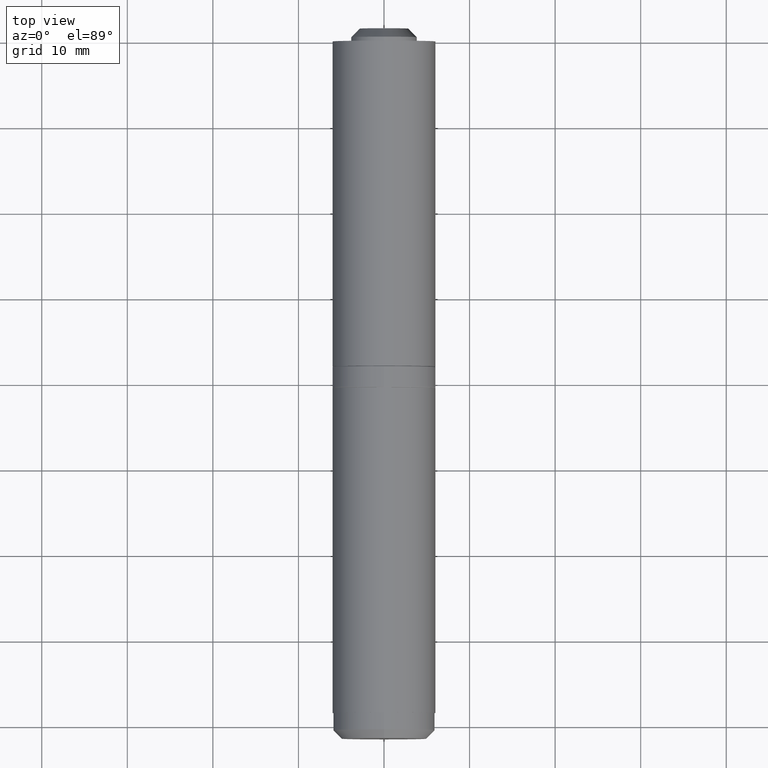
[diagram: clean part render]
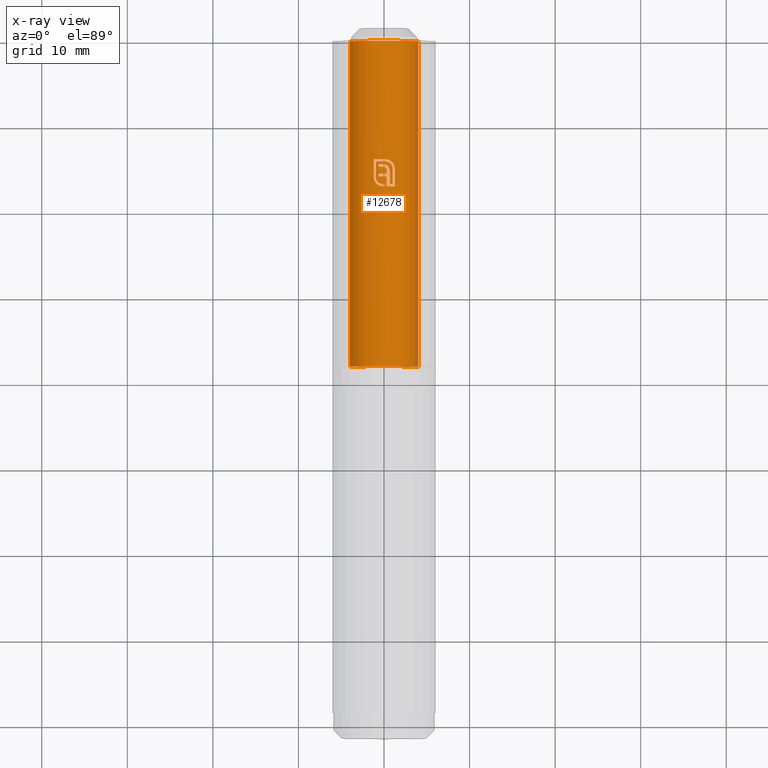
[diagram: x-ray — body ghosted, one internal face saturated and labeled with its STEP entity id]
A machine part, top view, then the same camera in x-ray: the body is ghosted and one INTERNAL B-rep face — a face not visible from any outside direction — is saturated and labeled: STEP entity #12678.
In plain terms, the highlighted cylindrical surface (edge-blend (fillet) strip) has radius 4 mm, axis along (-0, -1, -0).
Its self-contained STEP definition (entity closure, byte-faithful):
#60 = CARTESIAN_POINT ( 'NONE',  ( 0.1401927291283720234, 4.194099235700226025, 3.997634361236091394 ) ) ;
#70 = CIRCLE ( 'NONE', #4802, 3.999999999999999112 ) ;
#137 = CARTESIAN_POINT ( 'NONE',  ( 0.2572454867344829421, 4.513230277568033522, 3.992014634710784993 ) ) ;
#142 = EDGE_CURVE ( 'NONE', #8122, #1817, #10610, .T. ) ;
#239 = CARTESIAN_POINT ( 'NONE',  ( -0.6308249118715539838, 2.412822018508260502, 3.950203185221408564 ) ) ;
#289 = CARTESIAN_POINT ( 'NONE',  ( -0.7101493376495157106, 2.485418534595870810, 3.936456263981088277 ) ) ;
#298 = LINE ( 'NONE', #3998, #8769 ) ;
#343 = CARTESIAN_POINT ( 'NONE',  ( 0.7250119282323264081, 4.694743182445149543, 3.933940830589310433 ) ) ;
#391 = CARTESIAN_POINT ( 'NONE',  ( 0.4134022794354951236, 5.124461678144707655, 3.978834949116341502 ) ) ;
#412 = EDGE_CURVE ( 'NONE', #7582, #9921, #2243, .T. ) ;
#417 = EDGE_CURVE ( 'NONE', #3512, #743, #12753, .T. ) ;
#440 = CARTESIAN_POINT ( 'NONE',  ( -0.7832106915227069477, 2.564478375825065992, 3.922695867154072147 ) ) ;
#447 = CIRCLE ( 'NONE', #3106, 3.999999999999999112 ) ;
#464 = CIRCLE ( 'NONE', #2428, 3.999999999999999112 ) ;
#501 = CARTESIAN_POINT ( 'NONE',  ( 0.000000000000000000, 4.609445667457183760, 0.000000000000000000 ) ) ;
#512 = VERTEX_POINT ( 'NONE', #10999 ) ;
#564 = DIRECTION ( 'NONE',  ( 0.000000000000000000, 1.000000000000000000, 0.000000000000000000 ) ) ;
#663 = B_SPLINE_CURVE_WITH_KNOTS ( 'NONE', 3,
 ( #7351, #10887, #3947, #1444, #7393, #11036, #8562, #5146 ),
 .UNSPECIFIED., .F., .F.,
 ( 4, 2, 2, 4 ),
 ( 0.000000000000000000, 0.0002708300508955149692, 0.0004062450763432735651, 0.0005416601017910321067 ),
 .UNSPECIFIED. ) ;
#671 = ORIENTED_EDGE ( 'NONE', *, *, #9992, .F. ) ;
#721 = DIRECTION ( 'NONE',  ( 2.486899575160350651E-14, 0.000000000000000000, -1.000000000000000000 ) ) ;
#737 = CARTESIAN_POINT ( 'NONE',  ( -0.06557464715296276725, 4.278026260451807339, 3.999507395000676535 ) ) ;
#739 = ORIENTED_EDGE ( 'NONE', *, *, #8739, .F. ) ;
#743 = VERTEX_POINT ( 'NONE', #3115 ) ;
#760 = ORIENTED_EDGE ( 'NONE', *, *, #4123, .F. ) ;
#785 = VERTEX_POINT ( 'NONE', #4165 ) ;
#809 = ORIENTED_EDGE ( 'NONE', *, *, #2214, .F. ) ;
#824 = CARTESIAN_POINT ( 'NONE',  ( 0.3255386204234211878, 3.755468615853324366, 3.986731067756239977 ) ) ;
#868 = CARTESIAN_POINT ( 'NONE',  ( -0.1797923476653958963, 2.000835203946047081, 3.996279669453248307 ) ) ;
#943 = VERTEX_POINT ( 'NONE', #7142 ) ;
#969 = CARTESIAN_POINT ( 'NONE',  ( -0.6928129614139485470, 2.160522002181170187, 3.939544415347645767 ) ) ;
#1019 = CARTESIAN_POINT ( 'NONE',  ( -1.200062488306459452, 19.00000000000000355, 3.815737153442268159 ) ) ;
#1108 = CARTESIAN_POINT ( 'NONE',  ( 0.3255386204234211878, 3.755468615853324366, 3.986731067756239977 ) ) ;
#1121 = CARTESIAN_POINT ( 'NONE',  ( 1.216547428826981747, 4.351190577540179127, 3.810520181558624486 ) ) ;
#1169 = VECTOR ( 'NONE', #9736, 1000.000000000000000 ) ;
#1203 = EDGE_CURVE ( 'NONE', #3386, #5835, #7939, .T. ) ;
#1221 = CARTESIAN_POINT ( 'NONE',  ( 1.253355793030608956, 4.080365148268018771, 3.798565420797252568 ) ) ;
#1263 = DIRECTION ( 'NONE',  ( 0.000000000000000000, 1.000000000000000000, 0.000000000000000000 ) ) ;
#1302 = CARTESIAN_POINT ( 'NONE',  ( 1.253355793030608734, 19.00000000000000355, 3.798565420797252568 ) ) ;
#1322 = DIRECTION ( 'NONE',  ( 3.117335915863028101E-14, -1.000000000000000000, -0.000000000000000000 ) ) ;
#1328 = CARTESIAN_POINT ( 'NONE',  ( -1.200062488306459452, 3.066508182491725520, 3.815737153442268159 ) ) ;
#1414 = CARTESIAN_POINT ( 'NONE',  ( -0.9479928566730889683, 2.958054667844198793, 3.886054823358964683 ) ) ;
#1437 = ORIENTED_EDGE ( 'NONE', *, *, #7631, .F. ) ;
#1444 = CARTESIAN_POINT ( 'NONE',  ( 0.9570890102911903119, 4.816955984965132664, 3.883950361943443230 ) ) ;
#1481 = ORIENTED_EDGE ( 'NONE', *, *, #2826, .F. ) ;
#1504 = CARTESIAN_POINT ( 'NONE',  ( 1.006151909671600508, 4.080365148268018771, 3.871389716195487996 ) ) ;
#1505 = ORIENTED_EDGE ( 'NONE', *, *, #11352, .F. ) ;
#1567 = CARTESIAN_POINT ( 'NONE',  ( -0.9126116339843209913, 2.799451500514632762, 3.894560063781909776 ) ) ;
#1617 = CARTESIAN_POINT ( 'NONE',  ( 0.5465789245954345565, 5.087073448815809584, 3.962708533269999833 ) ) ;
#1639 = ORIENTED_EDGE ( 'NONE', *, *, #5252, .F. ) ;
#1640 = B_SPLINE_CURVE_WITH_KNOTS ( 'NONE', 3,
 ( #11678, #343, #13083, #8537, #8477, #4885, #10766, #9499, #7325, #14250 ),
 .UNSPECIFIED., .F., .F.,
 ( 4, 2, 2, 2, 4 ),
 ( 0.000000000000000000, 0.0001627752111597128562, 0.0003255504223194257123, 0.0004883256334791385685, 0.0006511008446388514247 ),
 .UNSPECIFIED. ) ;
#1650 = CARTESIAN_POINT ( 'NONE',  ( 0.3216860923710733178, 2.247203883359007115, 3.987043774273744123 ) ) ;
#1707 = AXIS2_PLACEMENT_3D ( 'NONE', #11298, #5492, #10173 ) ;
#1708 = VERTEX_POINT ( 'NONE', #11413 ) ;
#1718 = CARTESIAN_POINT ( 'NONE',  ( 0.2794199600745770895, 4.012232901861620959, 3.990245129203810581 ) ) ;
#1731 = CARTESIAN_POINT ( 'NONE',  ( 1.006151909671600730, 19.00000000000000355, 3.871389716195487996 ) ) ;
#1742 = CIRCLE ( 'NONE', #14494, 3.999999999999999112 ) ;
#1780 = VERTEX_POINT ( 'NONE', #10348 ) ;
#1797 = AXIS2_PLACEMENT_3D ( 'NONE', #14527, #4397, #721 ) ;
#1817 = VERTEX_POINT ( 'NONE', #10490 ) ;
#1875 = ORIENTED_EDGE ( 'NONE', *, *, #6358, .F. ) ;
#1892 = CARTESIAN_POINT ( 'NONE',  ( 2.141176470588235237, 19.00000000000000355, -3.378662948830394974 ) ) ;
#1893 = CARTESIAN_POINT ( 'NONE',  ( 0.5710694224464603064, 4.205639836505973506, 3.959132630259351249 ) ) ;
#1940 = CARTESIAN_POINT ( 'NONE',  ( -0.1603887726071833719, 4.287855775062469732, 3.996964379934859313 ) ) ;
#2020 = AXIS2_PLACEMENT_3D ( 'NONE', #6141, #14181, #14268 ) ;
#2024 = CARTESIAN_POINT ( 'NONE',  ( 0.3201257663639279771, 3.850961479400957899, 3.987170364534184941 ) ) ;
#2152 = CARTESIAN_POINT ( 'NONE',  ( -0.009488248113467117120, 4.265484730685916936, 4.000031904821421236 ) ) ;
#2203 = VERTEX_POINT ( 'NONE', #12607 ) ;
#2214 = EDGE_CURVE ( 'NONE', #5294, #512, #12782, .T. ) ;
#2243 = B_SPLINE_CURVE_WITH_KNOTS ( 'NONE', 3,
 ( #289, #11849, #239, #12002, #8577, #2619, #3806, #13030, #9648, #12051 ),
 .UNSPECIFIED., .F., .F.,
 ( 4, 2, 2, 2, 4 ),
 ( 0.000000000000000000, 0.0001624091567637914245, 0.0003248183135275828489, 0.0004872274702913742734, 0.0006496366270551656979 ),
 .UNSPECIFIED. ) ;
#2246 = VERTEX_POINT ( 'NONE', #12851 ) ;
#2305 = CARTESIAN_POINT ( 'NONE',  ( 0.000000000000000000, 3.144200831547407038, 0.000000000000000000 ) ) ;
#2313 = CARTESIAN_POINT ( 'NONE',  ( 1.092833790849434772, 4.639623803867232610, 3.847819422163369474 ) ) ;
#2323 = CARTESIAN_POINT ( 'NONE',  ( 1.234576336636003635, 4.278748942411448652, 3.804714933791631282 ) ) ;
#2360 = CARTESIAN_POINT ( 'NONE',  ( 1.209693808437329432, 4.375083544272656333, 3.812694701891089277 ) ) ;
#2385 = CARTESIAN_POINT ( 'NONE',  ( 0.000000000000000000, 5.146873330759742515, 0.000000000000000000 ) ) ;
#2400 = ORIENTED_EDGE ( 'NONE', *, *, #3376, .F. ) ;
#2428 = AXIS2_PLACEMENT_3D ( 'NONE', #2385, #9570, #10635 ) ;
#2435 = CARTESIAN_POINT ( 'NONE',  ( -0.3307323456686998009, 2.017999173778742605, 3.986620244103028288 ) ) ;
#2451 = DIRECTION ( 'NONE',  ( -1.546769729245006527E-14, -1.000000000000000000, -0.000000000000000000 ) ) ;
#2504 = EDGE_CURVE ( 'NONE', #3155, #943, #464, .T. ) ;
#2508 = VERTEX_POINT ( 'NONE', #4450 ) ;
#2520 = CARTESIAN_POINT ( 'NONE',  ( 0.4385461099589678668, 4.384072776394798865, 3.975886983987328094 ) ) ;
#2540 = CARTESIAN_POINT ( 'NONE',  ( 0.02696769636643687323, 4.253728910623685522, 3.999909091886049595 ) ) ;
#2575 = ORIENTED_EDGE ( 'NONE', *, *, #4967, .F. ) ;
#2579 = CARTESIAN_POINT ( 'NONE',  ( 0.08625105109217386101, 4.572649645668312779, 3.999210492596049438 ) ) ;
#2592 = CARTESIAN_POINT ( 'NONE',  ( 0.3255386204234211878, 19.00000000000000355, 3.986731067756239977 ) ) ;
#2619 = CARTESIAN_POINT ( 'NONE',  ( -0.3955905256456376251, 2.286430987117106017, 3.980700938520645771 ) ) ;
#2639 = CIRCLE ( 'NONE', #8095, 3.999999999999999112 ) ;
#2652 = VERTEX_POINT ( 'NONE', #11339 ) ;
#2674 = DIRECTION ( 'NONE',  ( 0.000000000000000000, 1.000000000000000000, 0.000000000000000000 ) ) ;
#2712 = CARTESIAN_POINT ( 'NONE',  ( -0.6279620725327542674, 3.460750219848686360, 3.950400439887107318 ) ) ;
#2729 = CARTESIAN_POINT ( 'NONE',  ( 0.2294442904948348350, 5.145490669375033299, 3.993684686045562149 ) ) ;
#2814 = EDGE_CURVE ( 'NONE', #13529, #3155, #11857, .T. ) ;
#2826 = EDGE_CURVE ( 'NONE', #11292, #3512, #14123, .T. ) ;
#2827 = EDGE_CURVE ( 'NONE', #5702, #2246, #1742, .T. ) ;
#2840 = DIRECTION ( 'NONE',  ( 1.000000000000000000, 3.686287386450715707E-14, -1.065814103640149963E-14 ) ) ;
#2843 = ORIENTED_EDGE ( 'NONE', *, *, #9496, .F. ) ;
#2852 = ORIENTED_EDGE ( 'NONE', *, *, #7688, .F. ) ;
#2883 = VECTOR ( 'NONE', #7120, 1000.000000000000000 ) ;
#2924 = CARTESIAN_POINT ( 'NONE',  ( 0.2305899301110127808, 4.099621099325785778, 3.993386607664576538 ) ) ;
#2950 = AXIS2_PLACEMENT_3D ( 'NONE', #6720, #14875, #12574 ) ;
#3040 = CARTESIAN_POINT ( 'NONE',  ( -1.177478369715654560, 2.838459715671040051, 3.822785924191142826 ) ) ;
#3049 = DIRECTION ( 'NONE',  ( -0.000000000000000000, -1.000000000000000000, -0.000000000000000000 ) ) ;
#3106 = AXIS2_PLACEMENT_3D ( 'NONE', #4407, #13920, #13763 ) ;
#3115 = CARTESIAN_POINT ( 'NONE',  ( 0.4385461099589678668, 4.384072776394798865, 3.975886983987328094 ) ) ;
#3135 = CARTESIAN_POINT ( 'NONE',  ( 0.7114335136669645010, 5.008182320875207871, 3.936224378212130226 ) ) ;
#3155 = VERTEX_POINT ( 'NONE', #4963 ) ;
#3182 = CARTESIAN_POINT ( 'NONE',  ( -0.04667164878346102136, 4.274639055421463496, 3.999770971902979699 ) ) ;
#3196 = CARTESIAN_POINT ( 'NONE',  ( -0.9528586049474211395, 19.00000000000000355, 3.884850123103547492 ) ) ;
#3215 = CARTESIAN_POINT ( 'NONE',  ( 0.7634426423736646594, 4.656960180102795555, 3.926468557343290922 ) ) ;
#3250 = CARTESIAN_POINT ( 'NONE',  ( -0.1290596897536647192, 2.247203883359007115, 3.997917407411098800 ) ) ;
#3260 = CARTESIAN_POINT ( 'NONE',  ( -2.141176470588233904, -19.00000000000000000, -3.378662948830397195 ) ) ;
#3299 = EDGE_CURVE ( 'NONE', #14931, #14466, #11467, .T. ) ;
#3311 = CARTESIAN_POINT ( 'NONE',  ( -0.7675957049299747537, 2.209399799018510802, 3.925822205245407481 ) ) ;
#3313 = CARTESIAN_POINT ( 'NONE',  ( -0.4282727018193733803, 2.043661984593277303, 3.977006725274213839 ) ) ;
#3376 = EDGE_CURVE ( 'NONE', #8122, #6528, #447, .T. ) ;
#3386 = VERTEX_POINT ( 'NONE', #4558 ) ;
#3412 = CARTESIAN_POINT ( 'NONE',  ( 1.180845504422715520, 4.467936055007032614, 3.821782545613680693 ) ) ;
#3421 = CARTESIAN_POINT ( 'NONE',  ( 0.1521748580677528551, 4.552941922689394794, 3.997104303439184658 ) ) ;
#3475 = EDGE_CURVE ( 'NONE', #3880, #11427, #5979, .T. ) ;
#3512 = VERTEX_POINT ( 'NONE', #3421 ) ;
#3561 = CARTESIAN_POINT ( 'NONE',  ( 1.117923713670150088, 4.598458986658784831, 3.840693538004058993 ) ) ;
#3580 = DIRECTION ( 'NONE',  ( 0.000000000000000000, 1.000000000000000000, 0.000000000000000000 ) ) ;
#3615 = DIRECTION ( 'NONE',  ( -1.000000000000000000, -3.122502256758253401E-14, -1.776356839400250465E-14 ) ) ;
#3633 = CARTESIAN_POINT ( 'NONE',  ( -0.4282727018193733803, 2.043661984593277303, 3.977006725274213839 ) ) ;
#3770 = CARTESIAN_POINT ( 'NONE',  ( -0.01478918856462107731, 4.592508731203983174, 4.000118547447986117 ) ) ;
#3806 = CARTESIAN_POINT ( 'NONE',  ( -0.3433464664379623499, 2.270903769474265754, 3.985592199981979444 ) ) ;
#3852 = CARTESIAN_POINT ( 'NONE',  ( -0.2549089394637049644, 4.609445667457176654, 3.991869415772700602 ) ) ;
#3856 = CARTESIAN_POINT ( 'NONE',  ( 0.6306812368752828801, 5.051427508518894882, 3.950196022720422473 ) ) ;
#3880 = VERTEX_POINT ( 'NONE', #11641 ) ;
#3906 = CARTESIAN_POINT ( 'NONE',  ( -0.9528586049474511155, 3.066508182491725520, 3.884850123103547492 ) ) ;
#3913 = ORIENTED_EDGE ( 'NONE', *, *, #11238, .F. ) ;
#3929 = ORIENTED_EDGE ( 'NONE', *, *, #11948, .F. ) ;
#3947 = CARTESIAN_POINT ( 'NONE',  ( 0.8607374767871731613, 4.909802797014603648, 3.906851692436909218 ) ) ;
#3992 = ORIENTED_EDGE ( 'NONE', *, *, #5776, .F. ) ;
#3998 = CARTESIAN_POINT ( 'NONE',  ( -0.6279620725328406428, 18.99999999999999645, 3.950400439887107318 ) ) ;
#4072 = CARTESIAN_POINT ( 'NONE',  ( -1.200062488306459452, 3.066508182491725520, 3.815737153442268159 ) ) ;
#4088 = EDGE_CURVE ( 'NONE', #8680, #12504, #14749, .T. ) ;
#4103 = CARTESIAN_POINT ( 'NONE',  ( 0.8009330469768636274, 4.618718467151827767, 3.919179113117285507 ) ) ;
#4123 = EDGE_CURVE ( 'NONE', #1780, #6453, #12751, .T. ) ;
#4128 = CARTESIAN_POINT ( 'NONE',  ( -1.140354129686549367, 2.706270904483103035, 3.834049961103521031 ) ) ;
#4132 = CARTESIAN_POINT ( 'NONE',  ( -0.6279620725327542674, 3.144200831547414143, 3.950400439887121085 ) ) ;
#4146 = CARTESIAN_POINT ( 'NONE',  ( 1.253355793030608956, 2.000000000000001776, 3.798565420797252568 ) ) ;
#4165 = CARTESIAN_POINT ( 'NONE',  ( 0.6119098723146363383, 4.102196140564659643, 3.952918707507640850 ) ) ;
#4174 = CARTESIAN_POINT ( 'NONE',  ( -1.104613527427546815, 2.622103679812041843, 3.844499395286095744 ) ) ;
#4196 = CARTESIAN_POINT ( 'NONE',  ( 0.000000000000000000, 4.288401663094819405, 0.000000000000000000 ) ) ;
#4205 = CARTESIAN_POINT ( 'NONE',  ( 0.3253410151953772811, 3.774597263512174727, 3.986747203314980670 ) ) ;
#4237 = B_SPLINE_CURVE_WITH_KNOTS ( 'NONE', 3,
 ( #8583, #2729, #8675, #7458, #391, #8627, #1617, #3856, #9898, #12144 ),
 .UNSPECIFIED., .F., .F.,
 ( 4, 2, 2, 2, 4 ),
 ( 0.000000000000000000, 0.0001394819177503639875, 0.0002789638355007279750, 0.0004184457532510919625, 0.0005579276710014559500 ),
 .UNSPECIFIED. ) ;
#4250 = CARTESIAN_POINT ( 'NONE',  ( 0.7634426423736646594, 4.656960180102795555, 3.926468557343290922 ) ) ;
#4378 = AXIS2_PLACEMENT_3D ( 'NONE', #501, #11123, #2840 ) ;
#4384 = EDGE_CURVE ( 'NONE', #5707, #11982, #13295, .T. ) ;
#4397 = DIRECTION ( 'NONE',  ( -0.000000000000000000, 1.000000000000000000, 0.000000000000000000 ) ) ;
#4399 = CARTESIAN_POINT ( 'NONE',  ( 0.3173023588030307041, 3.869899160145344297, 3.987395041013370278 ) ) ;
#4407 = CARTESIAN_POINT ( 'NONE',  ( 0.000000000000000000, 19.00000000000000355, 0.000000000000000000 ) ) ;
#4450 = CARTESIAN_POINT ( 'NONE',  ( 0.6684136170824095391, 3.703459487146620877, 3.943757502243109059 ) ) ;
#4462 = CARTESIAN_POINT ( 'NONE',  ( -0.1221914123415381997, 4.286265233500831329, 3.998310684761537281 ) ) ;
#4481 = LINE ( 'NONE', #1302, #11992 ) ;
#4485 = EDGE_CURVE ( 'NONE', #2652, #8680, #10540, .T. ) ;
#4492 = FACE_BOUND ( 'NONE', #15188, .T. ) ;
#4493 = CARTESIAN_POINT ( 'NONE',  ( -0.2549089394637049644, 4.609445667457176654, 3.991869415772700602 ) ) ;
#4499 = CARTESIAN_POINT ( 'NONE',  ( -0.9617284653665018057, 2.393275799362919010, 3.882758831398714250 ) ) ;
#4506 = VERTEX_POINT ( 'NONE', #14823 ) ;
#4535 = LINE ( 'NONE', #10762, #2883 ) ;
#4558 = CARTESIAN_POINT ( 'NONE',  ( 1.209693808437329432, 4.375083544272656333, 3.812694701891089277 ) ) ;
#4563 = CARTESIAN_POINT ( 'NONE',  ( 2.141176470588235237, 19.00000000000000355, -3.378662948830394974 ) ) ;
#4620 = ORIENTED_EDGE ( 'NONE', *, *, #1203, .F. ) ;
#4646 = B_SPLINE_CURVE_WITH_KNOTS ( 'NONE', 3,
 ( #15018, #3561, #10516, #3412, #12938, #2360 ),
 .UNSPECIFIED., .F., .F.,
 ( 4, 2, 4 ),
 ( 0.000000000000000000, 0.0001459862905934301998, 0.0002919725811868603997 ),
 .UNSPECIFIED. ) ;
#4659 = CARTESIAN_POINT ( 'NONE',  ( 0.1829950824865384518, 4.899669447400737177, 3.995811907458324708 ) ) ;
#4746 = VERTEX_POINT ( 'NONE', #4940 ) ;
#4765 = CARTESIAN_POINT ( 'NONE',  ( -0.4282727018193733803, 2.043661984593277303, 3.977006725274213839 ) ) ;
#4785 = VERTEX_POINT ( 'NONE', #4146 ) ;
#4802 = AXIS2_PLACEMENT_3D ( 'NONE', #4196, #7536, #14671 ) ;
#4885 = CARTESIAN_POINT ( 'NONE',  ( 0.4506908296073126041, 4.859670349849683824, 3.974838217330519452 ) ) ;
#4940 = CARTESIAN_POINT ( 'NONE',  ( 0.1868476105388863495, 4.149710653210285649, 3.995633613137709261 ) ) ;
#4963 = CARTESIAN_POINT ( 'NONE',  ( -1.200062488306459452, 5.146873330759742515, 3.815737153442268159 ) ) ;
#4967 = EDGE_CURVE ( 'NONE', #4785, #2652, #6137, .T. ) ;
#5061 = CARTESIAN_POINT ( 'NONE',  ( -0.6279620725326766628, 19.00000000000000355, 3.950400439887133519 ) ) ;
#5079 = DIRECTION ( 'NONE',  ( 0.000000000000000000, 1.000000000000000000, 0.000000000000000000 ) ) ;
#5091 = B_SPLINE_CURVE_WITH_KNOTS ( 'NONE', 3,
 ( #7934, #868, #9466, #2435, #10632, #3633 ),
 .UNSPECIFIED., .F., .F.,
 ( 4, 2, 4 ),
 ( 2.168404344971013683E-19, 0.0001522707262224271690, 0.0003045414524448541212 ),
 .UNSPECIFIED. ) ;
#5092 = ORIENTED_EDGE ( 'NONE', *, *, #6933, .F. ) ;
#5111 = CARTESIAN_POINT ( 'NONE',  ( -0.8439416541027759955, 2.653227518187847522, 3.910079837800423785 ) ) ;
#5146 = CARTESIAN_POINT ( 'NONE',  ( 1.092833790849434772, 4.639623803867232610, 3.847819422163369474 ) ) ;
#5213 = VERTEX_POINT ( 'NONE', #2712 ) ;
#5252 = EDGE_CURVE ( 'NONE', #8617, #5294, #2639, .T. ) ;
#5294 = VERTEX_POINT ( 'NONE', #14820 ) ;
#5299 = CARTESIAN_POINT ( 'NONE',  ( 0.8973375195807079541, 4.491350128990623247, 3.898172889841478916 ) ) ;
#5317 = CARTESIAN_POINT ( 'NONE',  ( -1.186707562902153512, 2.883313891585904010, 3.819915698244698454 ) ) ;
#5335 = VECTOR ( 'NONE', #3580, 1000.000000000000000 ) ;
#5492 = DIRECTION ( 'NONE',  ( 0.000000000000000000, 1.000000000000000000, 0.000000000000000000 ) ) ;
#5520 = CARTESIAN_POINT ( 'NONE',  ( 0.5132480806948118701, 4.301131431681317174, 3.967042711756550766 ) ) ;
#5605 = VECTOR ( 'NONE', #5950, 1000.000000000000000 ) ;
#5662 = EDGE_CURVE ( 'NONE', #5835, #4785, #4481, .T. ) ;
#5702 = VERTEX_POINT ( 'NONE', #12190 ) ;
#5707 = VERTEX_POINT ( 'NONE', #9804 ) ;
#5760 = CARTESIAN_POINT ( 'NONE',  ( -0.6928129614139485470, 2.160522002181170187, 3.939544415347645767 ) ) ;
#5776 = EDGE_CURVE ( 'NONE', #2246, #6121, #5091, .T. ) ;
#5811 = CARTESIAN_POINT ( 'NONE',  ( 0.05684368311797486500, 4.242009322264087778, 3.999707665673390533 ) ) ;
#5835 = VERTEX_POINT ( 'NONE', #1221 ) ;
#5860 = EDGE_CURVE ( 'NONE', #12504, #5707, #13999, .T. ) ;
#5870 = VERTEX_POINT ( 'NONE', #14499 ) ;
#5950 = DIRECTION ( 'NONE',  ( -0.000000000000000000, -1.000000000000000000, -0.000000000000000000 ) ) ;
#5954 = DIRECTION ( 'NONE',  ( 0.000000000000000000, 0.000000000000000000, 1.000000000000000000 ) ) ;
#5979 = B_SPLINE_CURVE_WITH_KNOTS ( 'NONE', 3,
 ( #969, #13701, #3311, #11499, #12565, #14861, #4499, #12674, #12737, #13748 ),
 .UNSPECIFIED., .F., .F.,
 ( 4, 2, 2, 2, 4 ),
 ( 0.000000000000000000, 0.0001353464060341251062, 0.0002706928120682502124, 0.0004060392181023753187, 0.0005413856241365006417 ),
 .UNSPECIFIED. ) ;
#6005 = CARTESIAN_POINT ( 'NONE',  ( -2.141176470588233904, 19.00000000000000355, -3.378662948830397195 ) ) ;
#6007 = CARTESIAN_POINT ( 'NONE',  ( 0.6669539919693112662, 3.770838813913922838, 3.944004888980472856 ) ) ;
#6016 = CARTESIAN_POINT ( 'NONE',  ( 1.250794899269185967, 4.155380520896575725, 3.799409443579643941 ) ) ;
#6018 = CARTESIAN_POINT ( 'NONE',  ( -0.1172706532169175142, 4.605906396351912235, 3.998864344890556755 ) ) ;
#6050 = CARTESIAN_POINT ( 'NONE',  ( 0.1521748580677528551, 4.552941922689394794, 3.997104303439184658 ) ) ;
#6074 = CARTESIAN_POINT ( 'NONE',  ( -0.7101493376495157106, 2.485418534595870810, 3.936456263981088277 ) ) ;
#6107 = CARTESIAN_POINT ( 'NONE',  ( 0.6310632567446853303, 4.037568613852558386, 3.949953773015380865 ) ) ;
#6121 = VERTEX_POINT ( 'NONE', #4765 ) ;
#6137 = CIRCLE ( 'NONE', #10727, 3.999999999999999112 ) ;
#6141 = CARTESIAN_POINT ( 'NONE',  ( 0.000000000000000000, 2.247203883359007115, 0.000000000000000000 ) ) ;
#6298 = ORIENTED_EDGE ( 'NONE', *, *, #15185, .F. ) ;
#6358 = EDGE_CURVE ( 'NONE', #8356, #7586, #9727, .T. ) ;
#6376 = EDGE_CURVE ( 'NONE', #11427, #13529, #10884, .T. ) ;
#6407 = CARTESIAN_POINT ( 'NONE',  ( 0.9654817793174615970, 4.345880073801728471, 3.881791530966490544 ) ) ;
#6427 = ORIENTED_EDGE ( 'NONE', *, *, #412, .F. ) ;
#6432 = DIRECTION ( 'NONE',  ( 0.000000000000000000, 1.000000000000000000, 0.000000000000000000 ) ) ;
#6448 = EDGE_CURVE ( 'NONE', #2508, #1780, #6499, .T. ) ;
#6453 = VERTEX_POINT ( 'NONE', #12293 ) ;
#6460 = CARTESIAN_POINT ( 'NONE',  ( 0.9809236118580245689, 4.294726172964931088, 3.877873063314418278 ) ) ;
#6499 = LINE ( 'NONE', #12439, #14174 ) ;
#6528 = VERTEX_POINT ( 'NONE', #9020 ) ;
#6536 = CARTESIAN_POINT ( 'NONE',  ( 0.2098493689180252197, 4.125547100685136748, 3.994557983085642583 ) ) ;
#6543 = CARTESIAN_POINT ( 'NONE',  ( -1.082990288707396553, 2.582029527271962444, 3.850666800188788041 ) ) ;
#6567 = CARTESIAN_POINT ( 'NONE',  ( 1.001303562969121819, 4.188324020793499969, 3.872660816837111497 ) ) ;
#6574 = CIRCLE ( 'NONE', #4378, 3.999999999999999112 ) ;
#6619 = CARTESIAN_POINT ( 'NONE',  ( -0.1984051946959317081, 4.288401663094819405, 3.995076392100364693 ) ) ;
#6706 = CYLINDRICAL_SURFACE ( 'NONE', #2950, 3.999999999999999112 ) ;
#6712 = CARTESIAN_POINT ( 'NONE',  ( -0.6279620725327543784, 4.288401663094819405, 3.950400439887121085 ) ) ;
#6720 = CARTESIAN_POINT ( 'NONE',  ( 0.000000000000000000, 19.00000000000000355, 0.000000000000000000 ) ) ;
#6923 = B_SPLINE_CURVE_WITH_KNOTS ( 'NONE', 3,
 ( #7132, #9507, #60, #10624, #5811, #2540 ),
 .UNSPECIFIED., .F., .F.,
 ( 4, 2, 4 ),
 ( 0.000000000000000000, 9.649620898416803004E-05, 0.0001929924179683360601 ),
 .UNSPECIFIED. ) ;
#6933 = EDGE_CURVE ( 'NONE', #10437, #8617, #1640, .T. ) ;
#7119 = CARTESIAN_POINT ( 'NONE',  ( 0.6119098723146363383, 4.102196140564659643, 3.952918707507640850 ) ) ;
#7120 = DIRECTION ( 'NONE',  ( -0.000000000000000000, -1.000000000000000000, -0.000000000000000000 ) ) ;
#7132 = CARTESIAN_POINT ( 'NONE',  ( 0.1868476105388863495, 4.149710653210285649, 3.995633613137709261 ) ) ;
#7142 = CARTESIAN_POINT ( 'NONE',  ( 0.1829950824865384518, 5.146873330759742515, 3.995811907458324708 ) ) ;
#7181 = ORIENTED_EDGE ( 'NONE', *, *, #10162, .F. ) ;
#7212 = CARTESIAN_POINT ( 'NONE',  ( 0.3540406920435853477, 4.456668746409816251, 3.984596751563152850 ) ) ;
#7215 = CARTESIAN_POINT ( 'NONE',  ( 0.000000000000000000, -19.00000000000000000, 0.000000000000000000 ) ) ;
#7225 = B_SPLINE_CURVE_WITH_KNOTS ( 'NONE', 3,
 ( #12298, #8683, #5520, #1893, #10095, #13725 ),
 .UNSPECIFIED., .F., .F.,
 ( 4, 2, 4 ),
 ( 0.000000000000000000, 0.0001677189553251620994, 0.0003354379106503241987 ),
 .UNSPECIFIED. ) ;
#7299 = EDGE_LOOP ( 'NONE', ( #10775, #12474, #2400, #7768 ) ) ;
#7303 = VECTOR ( 'NONE', #1263, 1000.000000000000000 ) ;
#7321 = CARTESIAN_POINT ( 'NONE',  ( 0.6473444554782775695, 3.972013922687127163, 3.947280387336527419 ) ) ;
#7325 = CARTESIAN_POINT ( 'NONE',  ( 0.2374865809169281472, 4.898340025836085410, 3.993316375516127170 ) ) ;
#7351 = CARTESIAN_POINT ( 'NONE',  ( 0.7114335136669645010, 5.008182320875207871, 3.936224378212130226 ) ) ;
#7361 = AXIS2_PLACEMENT_3D ( 'NONE', #2305, #2451, #9481 ) ;
#7393 = CARTESIAN_POINT ( 'NONE',  ( 0.9873412143499135096, 4.783993366012137649, 3.876335611596665842 ) ) ;
#7458 = CARTESIAN_POINT ( 'NONE',  ( 0.3680901948611801644, 5.133614501093354932, 3.983296453427974004 ) ) ;
#7467 = EDGE_CURVE ( 'NONE', #785, #2508, #12561, .T. ) ;
#7536 = DIRECTION ( 'NONE',  ( 0.000000000000000000, -1.000000000000000000, -0.000000000000000000 ) ) ;
#7582 = VERTEX_POINT ( 'NONE', #6074 ) ;
#7583 = DIRECTION ( 'NONE',  ( 0.000000000000000000, -1.000000000000000000, -0.000000000000000000 ) ) ;
#7586 = VERTEX_POINT ( 'NONE', #7763 ) ;
#7602 = ORIENTED_EDGE ( 'NONE', *, *, #12034, .F. ) ;
#7631 = EDGE_CURVE ( 'NONE', #2203, #15040, #14918, .T. ) ;
#7649 = DIRECTION ( 'NONE',  ( 8.881784197001252323E-16, 0.000000000000000000, 1.000000000000000000 ) ) ;
#7682 = CARTESIAN_POINT ( 'NONE',  ( 0.3225917268567204954, 3.831938586361935961, 3.986970807381498894 ) ) ;
#7688 = EDGE_CURVE ( 'NONE', #10900, #14167, #663, .T. ) ;
#7745 = CARTESIAN_POINT ( 'NONE',  ( -1.061371478421925030, 2.541922279363645565, 3.856616468459425739 ) ) ;
#7763 = CARTESIAN_POINT ( 'NONE',  ( 0.2908658679522876933, 3.980841506915688832, 3.989410613970484576 ) ) ;
#7768 = ORIENTED_EDGE ( 'NONE', *, *, #142, .T. ) ;
#7786 = CARTESIAN_POINT ( 'NONE',  ( 0.3251442184537554625, 3.793746360606097934, 3.986763458641816360 ) ) ;
#7893 = CARTESIAN_POINT ( 'NONE',  ( -1.061371478421925030, 2.541922279363645565, 3.856616468459425739 ) ) ;
#7934 = CARTESIAN_POINT ( 'NONE',  ( -0.1290596897536647192, 1.999999999999994893, 3.997917407411098800 ) ) ;
#7939 = B_SPLINE_CURVE_WITH_KNOTS ( 'NONE', 3,
 ( #8192, #1121, #9397, #9348, #2323, #8483, #8336, #11801, #13173, #6016, #14294, #14157, #8434 ),
 .UNSPECIFIED., .F., .F.,
 ( 4, 3, 3, 3, 4 ),
 ( 0.000000000000000000, 7.485432915743429904E-05, 0.0001498060508165586385, 0.0002244274805168094186, 0.0002994914344063178660 ),
 .UNSPECIFIED. ) ;
#7952 = CARTESIAN_POINT ( 'NONE',  ( -0.02806913721663610931, 4.270059231394854216, 3.999901514229555755 ) ) ;
#7989 = CARTESIAN_POINT ( 'NONE',  ( -0.4748140605210655063, 2.057377987449372281, 3.971994816868113620 ) ) ;
#8027 = CIRCLE ( 'NONE', #11016, 3.999999999999999112 ) ;
#8095 = AXIS2_PLACEMENT_3D ( 'NONE', #14577, #7583, #8758 ) ;
#8122 = VERTEX_POINT ( 'NONE', #4563 ) ;
#8192 = CARTESIAN_POINT ( 'NONE',  ( 1.209693808437329432, 4.375083544272656333, 3.812694701891089277 ) ) ;
#8336 = CARTESIAN_POINT ( 'NONE',  ( 1.242515322770633146, 4.229463133636063077, 3.802125152159013144 ) ) ;
#8356 = VERTEX_POINT ( 'NONE', #1108 ) ;
#8379 = CARTESIAN_POINT ( 'NONE',  ( 0.3975054548574488700, 4.421945675447510382, 3.980413827863281018 ) ) ;
#8391 = CARTESIAN_POINT ( 'NONE',  ( 0.1192188238115310522, 4.562810681174496175, 3.998358981689919212 ) ) ;
#8425 = CARTESIAN_POINT ( 'NONE',  ( 0.2051544942579345276, 4.534399994231828934, 3.995087301128090740 ) ) ;
#8434 = CARTESIAN_POINT ( 'NONE',  ( 1.253355793030608956, 4.080365148268018771, 3.798565420797252568 ) ) ;
#8477 = CARTESIAN_POINT ( 'NONE',  ( 0.5491314141621833622, 4.818105993200147985, 3.962438109021216182 ) ) ;
#8483 = CARTESIAN_POINT ( 'NONE',  ( 1.238878889643009629, 4.254142431210414799, 3.803313520163874362 ) ) ;
#8486 = LINE ( 'NONE', #2592, #5335 ) ;
#8537 = CARTESIAN_POINT ( 'NONE',  ( 0.5956439023141415490, 4.791587451990515056, 3.955660747473769057 ) ) ;
#8562 = CARTESIAN_POINT ( 'NONE',  ( 1.067803381644405469, 4.676696905479071908, 3.854928403634922951 ) ) ;
#8577 = CARTESIAN_POINT ( 'NONE',  ( -0.4944082021859028675, 2.326905190361205022, 3.969638819279538655 ) ) ;
#8583 = CARTESIAN_POINT ( 'NONE',  ( 0.1829950824865384518, 5.146873330759742515, 3.995811907458324708 ) ) ;
#8588 = CIRCLE ( 'NONE', #1707, 3.999999999999999112 ) ;
#8593 = CARTESIAN_POINT ( 'NONE',  ( 0.3255386204233878811, 19.00000000000000355, 3.986731067756242641 ) ) ;
#8607 = ORIENTED_EDGE ( 'NONE', *, *, #3475, .F. ) ;
#8617 = VERTEX_POINT ( 'NONE', #4659 ) ;
#8622 = CARTESIAN_POINT ( 'NONE',  ( -0.9514615979470480989, 3.012179271421723037, 3.885192774711537123 ) ) ;
#8627 = CARTESIAN_POINT ( 'NONE',  ( 0.5028981752416863404, 5.101106200913126720, 3.968516400657895016 ) ) ;
#8636 = ORIENTED_EDGE ( 'NONE', *, *, #6448, .F. ) ;
#8675 = CARTESIAN_POINT ( 'NONE',  ( 0.2758479986660265504, 5.144114965324929400, 3.990745407699765934 ) ) ;
#8680 = VERTEX_POINT ( 'NONE', #1650 ) ;
#8683 = CARTESIAN_POINT ( 'NONE',  ( 0.4773614817472232597, 4.344027619728415779, 3.971605592093417236 ) ) ;
#8739 = EDGE_CURVE ( 'NONE', #9921, #1708, #8844, .T. ) ;
#8758 = DIRECTION ( 'NONE',  ( 0.000000000000000000, 0.000000000000000000, 1.000000000000000000 ) ) ;
#8769 = VECTOR ( 'NONE', #564, 1000.000000000000000 ) ;
#8778 = ORIENTED_EDGE ( 'NONE', *, *, #10202, .F. ) ;
#8819 = EDGE_CURVE ( 'NONE', #5870, #8356, #8486, .T. ) ;
#8844 = CIRCLE ( 'NONE', #1797, 3.999999999999999112 ) ;
#8879 = ORIENTED_EDGE ( 'NONE', *, *, #13037, .F. ) ;
#8963 = CARTESIAN_POINT ( 'NONE',  ( 0.3238685940456696444, 3.812833175790862672, 3.986867082533716022 ) ) ;
#8972 = CARTESIAN_POINT ( 'NONE',  ( 0.02696769636643687323, 4.253728910623685522, 3.999909091886049595 ) ) ;
#9020 = CARTESIAN_POINT ( 'NONE',  ( -2.141176470588233904, 19.00000000000000355, -3.378662948830397195 ) ) ;
#9072 = FACE_OUTER_BOUND ( 'NONE', #7299, .T. ) ;
#9302 = EDGE_CURVE ( 'NONE', #11982, #5213, #298, .T. ) ;
#9336 = EDGE_CURVE ( 'NONE', #5213, #5870, #8588, .T. ) ;
#9348 = CARTESIAN_POINT ( 'NONE',  ( 1.228990149236492968, 4.303023315616993472, 3.806518516056324852 ) ) ;
#9397 = CARTESIAN_POINT ( 'NONE',  ( 1.223409020429786054, 4.327275707073480859, 3.808320465080381911 ) ) ;
#9438 = VERTEX_POINT ( 'NONE', #3260 ) ;
#9466 = CARTESIAN_POINT ( 'NONE',  ( -0.2304840625899989004, 2.003462739570927464, 3.993670235767549759 ) ) ;
#9481 = DIRECTION ( 'NONE',  ( -1.000000000000000000, 1.550409106654271656E-14, -1.243449787580175325E-14 ) ) ;
#9496 = EDGE_CURVE ( 'NONE', #4746, #2203, #6923, .T. ) ;
#9499 = CARTESIAN_POINT ( 'NONE',  ( 0.2916342682562599320, 4.894839908538631157, 3.989712849057047261 ) ) ;
#9503 = CARTESIAN_POINT ( 'NONE',  ( 0.1521748580677528551, 4.552941922689394794, 3.997104303439184658 ) ) ;
#9507 = CARTESIAN_POINT ( 'NONE',  ( 0.1643355581084049721, 4.172682190107600775, 3.996686343095514182 ) ) ;
#9531 = ORIENTED_EDGE ( 'NONE', *, *, #4088, .F. ) ;
#9543 = DIRECTION ( 'NONE',  ( -0.000000000000000000, -1.000000000000000000, -0.000000000000000000 ) ) ;
#9570 = DIRECTION ( 'NONE',  ( -0.000000000000000000, 1.000000000000000000, 0.000000000000000000 ) ) ;
#9589 = EDGE_CURVE ( 'NONE', #14466, #11292, #6574, .T. ) ;
#9615 = CARTESIAN_POINT ( 'NONE',  ( -0.1861492126133096614, 4.608669971856024894, 3.996260207961443101 ) ) ;
#9640 = CARTESIAN_POINT ( 'NONE',  ( 1.004765869345931817, 4.134445192123642698, 3.871749940100284171 ) ) ;
#9648 = CARTESIAN_POINT ( 'NONE',  ( -0.1832484343970653407, 2.248691460643247098, 3.996168100995002082 ) ) ;
#9651 = CARTESIAN_POINT ( 'NONE',  ( -0.7474402655240488524, 2.524385313944633946, 3.929728860968193072 ) ) ;
#9727 = B_SPLINE_CURVE_WITH_KNOTS ( 'NONE', 3,
 ( #824, #4205, #7786, #8963, #7682, #2024, #4399, #10226, #12572, #13510 ),
 .UNSPECIFIED., .F., .F.,
 ( 4, 3, 3, 4 ),
 ( 0.000000000000000000, 5.738902530057136655E-05, 0.0001148591521320304221, 0.0002293357575778991750 ),
 .UNSPECIFIED. ) ;
#9736 = DIRECTION ( 'NONE',  ( 0.000000000000000000, 1.000000000000000000, 0.000000000000000000 ) ) ;
#9804 = CARTESIAN_POINT ( 'NONE',  ( 0.3255386204234211878, 3.144200831547414143, 3.986731067756242641 ) ) ;
#9839 = CARTESIAN_POINT ( 'NONE',  ( 0.3216860923710732623, 19.00000000000000355, 3.987043774273744123 ) ) ;
#9848 = LINE ( 'NONE', #6005, #5605 ) ;
#9898 = CARTESIAN_POINT ( 'NONE',  ( 0.6710942215947650613, 5.029784952496593853, 3.943515305136074289 ) ) ;
#9921 = VERTEX_POINT ( 'NONE', #3250 ) ;
#9949 = CARTESIAN_POINT ( 'NONE',  ( 0.2656400590395391892, 4.042747639916660418, 3.991208297392769833 ) ) ;
#9992 = EDGE_CURVE ( 'NONE', #14167, #3386, #4646, .T. ) ;
#10002 = CARTESIAN_POINT ( 'NONE',  ( 0.1868476105388863495, 4.149710653210285649, 3.995633613137709261 ) ) ;
#10079 = ORIENTED_EDGE ( 'NONE', *, *, #3299, .F. ) ;
#10095 = CARTESIAN_POINT ( 'NONE',  ( 0.5927098032020157170, 4.154488679499841020, 3.955890868765811863 ) ) ;
#10107 = EDGE_CURVE ( 'NONE', #1817, #9438, #8027, .T. ) ;
#10162 = EDGE_CURVE ( 'NONE', #1708, #5702, #4535, .T. ) ;
#10165 = ORIENTED_EDGE ( 'NONE', *, *, #4384, .F. ) ;
#10173 = DIRECTION ( 'NONE',  ( 6.217248937900875838E-15, 0.000000000000000000, -1.000000000000000000 ) ) ;
#10194 = CARTESIAN_POINT ( 'NONE',  ( 0.008756583799079519642, 4.259605372336180196, 4.000031872615043227 ) ) ;
#10202 = EDGE_CURVE ( 'NONE', #943, #10900, #4237, .T. ) ;
#10226 = CARTESIAN_POINT ( 'NONE',  ( 0.3116960148124668373, 3.907503066186726048, 3.987841173426680097 ) ) ;
#10311 = ORIENTED_EDGE ( 'NONE', *, *, #2504, .F. ) ;
#10348 = CARTESIAN_POINT ( 'NONE',  ( 0.6684136170824095391, 2.247203883359007115, 3.943757502243116164 ) ) ;
#10437 = VERTEX_POINT ( 'NONE', #3215 ) ;
#10472 = ORIENTED_EDGE ( 'NONE', *, *, #9336, .F. ) ;
#10490 = CARTESIAN_POINT ( 'NONE',  ( 2.141176470588235237, -19.00000000000000000, -3.378662948830394974 ) ) ;
#10505 = ORIENTED_EDGE ( 'NONE', *, *, #13301, .F. ) ;
#10516 = CARTESIAN_POINT ( 'NONE',  ( 1.141719784625643941, 4.556575215649593780, 3.833652809614754631 ) ) ;
#10540 = LINE ( 'NONE', #9839, #1169 ) ;
#10610 = LINE ( 'NONE', #1892, #12616 ) ;
#10618 = B_SPLINE_CURVE_WITH_KNOTS ( 'NONE', 3,
 ( #3313, #7989, #12839, #13956, #12898, #5760 ),
 .UNSPECIFIED., .F., .F.,
 ( 4, 2, 4 ),
 ( 0.000000000000000000, 0.0001461265267408658804, 0.0002922530534817317609 ),
 .UNSPECIFIED. ) ;
#10624 = CARTESIAN_POINT ( 'NONE',  ( 0.08601154391202289751, 4.228849196197225879, 3.999166975977599403 ) ) ;
#10632 = CARTESIAN_POINT ( 'NONE',  ( -0.3797534255023185534, 2.029871749371836565, 3.982231630081784601 ) ) ;
#10635 = DIRECTION ( 'NONE',  ( 3.552713678800500929E-15, 0.000000000000000000, -1.000000000000000000 ) ) ;
#10723 = CARTESIAN_POINT ( 'NONE',  ( 0.000000000000000000, 2.000000000000001776, 0.000000000000000000 ) ) ;
#10727 = AXIS2_PLACEMENT_3D ( 'NONE', #15005, #13834, #7649 ) ;
#10762 = CARTESIAN_POINT ( 'NONE',  ( 0.1001657293610822841, 19.00000000000000355, 3.998745656660542380 ) ) ;
#10766 = CARTESIAN_POINT ( 'NONE',  ( 0.3981782761619784838, 4.874620079230276737, 3.980491580790611827 ) ) ;
#10775 = ORIENTED_EDGE ( 'NONE', *, *, #10107, .T. ) ;
#10804 = CARTESIAN_POINT ( 'NONE',  ( -0.7101493376495157106, 2.485418534595870810, 3.936456263981088277 ) ) ;
#10817 = B_SPLINE_CURVE_WITH_KNOTS ( 'NONE', 3,
 ( #3906, #8622, #1414, #12004, #1567, #13378, #5111, #440, #9651, #10804 ),
 .UNSPECIFIED., .F., .F.,
 ( 4, 2, 2, 2, 4 ),
 ( 0.000000000000000000, 0.0001626484314240320974, 0.0003252968628480641948, 0.0004879452942720963193, 0.0006505937256961283896 ),
 .UNSPECIFIED. ) ;
#10884 = B_SPLINE_CURVE_WITH_KNOTS ( 'NONE', 3,
 ( #7745, #6543, #4174, #4128, #12347, #3040, #5317, #13571, #14750, #4072 ),
 .UNSPECIFIED., .F., .F.,
 ( 4, 2, 2, 2, 4 ),
 ( 0.000000000000000000, 0.0001377831280381005402, 0.0002755662560762010805, 0.0004133493841143015936, 0.0005511325121524021610 ),
 .UNSPECIFIED. ) ;
#10887 = CARTESIAN_POINT ( 'NONE',  ( 0.7870639635006202450, 4.960511129766878469, 3.922554924569396917 ) ) ;
#10900 = VERTEX_POINT ( 'NONE', #3135 ) ;
#10913 = VECTOR ( 'NONE', #2674, 1000.000000000000000 ) ;
#10999 = CARTESIAN_POINT ( 'NONE',  ( -0.9528586049474511155, 3.066508182491725520, 3.884850123103547492 ) ) ;
#11009 = ORIENTED_EDGE ( 'NONE', *, *, #6376, .F. ) ;
#11016 = AXIS2_PLACEMENT_3D ( 'NONE', #7215, #9543, #5954 ) ;
#11032 = EDGE_CURVE ( 'NONE', #6528, #9438, #9848, .T. ) ;
#11036 = CARTESIAN_POINT ( 'NONE',  ( 1.042752929891819891, 4.713802524854668441, 3.861798386048717280 ) ) ;
#11038 = ORIENTED_EDGE ( 'NONE', *, *, #9589, .F. ) ;
#11123 = DIRECTION ( 'NONE',  ( -3.684124264201749066E-14, 1.000000000000000000, -0.000000000000000000 ) ) ;
#11137 = ORIENTED_EDGE ( 'NONE', *, *, #5860, .F. ) ;
#11162 = CARTESIAN_POINT ( 'NONE',  ( -0.6279620725327543784, 4.609445667457169549, 3.950400439887133519 ) ) ;
#11238 = EDGE_CURVE ( 'NONE', #512, #7582, #10817, .T. ) ;
#11288 = VECTOR ( 'NONE', #6432, 1000.000000000000000 ) ;
#11292 = VERTEX_POINT ( 'NONE', #3852 ) ;
#11298 = CARTESIAN_POINT ( 'NONE',  ( 0.000000000000000000, 3.460750219848686360, 0.000000000000000000 ) ) ;
#11339 = CARTESIAN_POINT ( 'NONE',  ( 0.3216860923710733178, 2.000000000000001776, 3.987043774273744123 ) ) ;
#11352 = EDGE_CURVE ( 'NONE', #7586, #4746, #12889, .T. ) ;
#11413 = CARTESIAN_POINT ( 'NONE',  ( 0.1001657293610526134, 2.247203883359007115, 3.998745656660543268 ) ) ;
#11427 = VERTEX_POINT ( 'NONE', #7893 ) ;
#11467 = LINE ( 'NONE', #5061, #10913 ) ;
#11499 = CARTESIAN_POINT ( 'NONE',  ( -0.8377806541330815593, 2.264302489121751805, 3.911445606036877187 ) ) ;
#11640 = ORIENTED_EDGE ( 'NONE', *, *, #9302, .F. ) ;
#11641 = CARTESIAN_POINT ( 'NONE',  ( -0.6928129614139485470, 2.160522002181170187, 3.939544415347645767 ) ) ;
#11678 = CARTESIAN_POINT ( 'NONE',  ( 0.7634426423736646594, 4.656960180102795555, 3.926468557343290922 ) ) ;
#11797 = CARTESIAN_POINT ( 'NONE',  ( 0.6684136170824095391, 3.703459487146620877, 3.943757502243109059 ) ) ;
#11801 = CARTESIAN_POINT ( 'NONE',  ( 1.246135793423807980, 4.204892168222134075, 3.800942000610291416 ) ) ;
#11849 = CARTESIAN_POINT ( 'NONE',  ( -0.6712991615622273534, 2.448170923184059600, 3.943464960373425754 ) ) ;
#11857 = LINE ( 'NONE', #1019, #7303 ) ;
#11941 = DIRECTION ( 'NONE',  ( -0.000000000000000000, -1.000000000000000000, -0.000000000000000000 ) ) ;
#11942 = DIRECTION ( 'NONE',  ( 1.000000000000000000, 1.013186930187704096E-12, -2.202682480856310172E-12 ) ) ;
#11948 = EDGE_CURVE ( 'NONE', #6453, #4506, #14397, .T. ) ;
#11982 = VERTEX_POINT ( 'NONE', #4132 ) ;
#11992 = VECTOR ( 'NONE', #11941, 1000.000000000000000 ) ;
#12001 = CARTESIAN_POINT ( 'NONE',  ( 0.000000000000000000, 2.247203883358681153, 0.000000000000000000 ) ) ;
#12002 = CARTESIAN_POINT ( 'NONE',  ( -0.5413516854794526711, 2.352389013446003929, 3.963456020520432332 ) ) ;
#12004 = CARTESIAN_POINT ( 'NONE',  ( -0.9273664916180737183, 2.851168652711274731, 3.891028647630168980 ) ) ;
#12008 = CARTESIAN_POINT ( 'NONE',  ( 0.6646904764838661439, 3.838169635331337926, 3.944396515407867732 ) ) ;
#12034 = EDGE_CURVE ( 'NONE', #743, #785, #7225, .T. ) ;
#12051 = CARTESIAN_POINT ( 'NONE',  ( -0.1290596897536647192, 2.247203883359007115, 3.997917407411098800 ) ) ;
#12144 = CARTESIAN_POINT ( 'NONE',  ( 0.7114335136669645010, 5.008182320875207871, 3.936224378212130226 ) ) ;
#12159 = VECTOR ( 'NONE', #5079, 1000.000000000000000 ) ;
#12190 = CARTESIAN_POINT ( 'NONE',  ( 0.1001657293610526134, 2.000000000000001776, 3.998745656660542380 ) ) ;
#12274 = CARTESIAN_POINT ( 'NONE',  ( 0.8366383418184033527, 4.579127764060656247, 3.911649624920626067 ) ) ;
#12293 = CARTESIAN_POINT ( 'NONE',  ( 1.006151909671600730, 2.247203883359007115, 3.871389716195487996 ) ) ;
#12298 = CARTESIAN_POINT ( 'NONE',  ( 0.4385461099589678668, 4.384072776394798865, 3.975886983987328094 ) ) ;
#12338 = CARTESIAN_POINT ( 'NONE',  ( 0.2908658679522876933, 3.980841506915688832, 3.989410613970484576 ) ) ;
#12347 = CARTESIAN_POINT ( 'NONE',  ( -1.154240457971695388, 2.749787415327636264, 3.829866381288446142 ) ) ;
#12439 = CARTESIAN_POINT ( 'NONE',  ( 0.6684136170823691270, 19.00000000000000355, 3.943757502243116164 ) ) ;
#12442 = DIRECTION ( 'NONE',  ( -0.000000000000000000, -1.000000000000000000, -0.000000000000000000 ) ) ;
#12474 = ORIENTED_EDGE ( 'NONE', *, *, #11032, .F. ) ;
#12504 = VERTEX_POINT ( 'NONE', #14680 ) ;
#12561 = B_SPLINE_CURVE_WITH_KNOTS ( 'NONE', 3,
 ( #7119, #6107, #7321, #12008, #6007, #11797 ),
 .UNSPECIFIED., .F., .F.,
 ( 4, 2, 4 ),
 ( 0.000000000000000000, 0.0002023660944902929163, 0.0004047321889805858327 ),
 .UNSPECIFIED. ) ;
#12565 = CARTESIAN_POINT ( 'NONE',  ( -0.8707033126510220766, 2.294842648131202978, 3.904213579458141403 ) ) ;
#12572 = CARTESIAN_POINT ( 'NONE',  ( 0.3026824776757259250, 3.944712441676024195, 3.988549071056996187 ) ) ;
#12574 = DIRECTION ( 'NONE',  ( 0.000000000000000000, 0.000000000000000000, -1.000000000000000000 ) ) ;
#12607 = CARTESIAN_POINT ( 'NONE',  ( 0.02696769636643687323, 4.253728910623685522, 3.999909091886049595 ) ) ;
#12616 = VECTOR ( 'NONE', #12442, 1000.000000000000000 ) ;
#12674 = CARTESIAN_POINT ( 'NONE',  ( -1.014369437337976354, 2.465636390683832335, 3.869340050770358364 ) ) ;
#12678 = ADVANCED_FACE ( 'NONE', ( #9072, #4492 ), #6706, .F. ) ;
#12737 = CARTESIAN_POINT ( 'NONE',  ( -1.037877650541276342, 2.503792838173247493, 3.863082156462214201 ) ) ;
#12751 = CIRCLE ( 'NONE', #2020, 3.999999999999999112 ) ;
#12753 = B_SPLINE_CURVE_WITH_KNOTS ( 'NONE', 3,
 ( #6050, #8425, #137, #7212, #8379, #2520 ),
 .UNSPECIFIED., .F., .F.,
 ( 4, 2, 4 ),
 ( 0.000000000000000000, 0.0001684465566997203861, 0.0003368931133994407722 ),
 .UNSPECIFIED. ) ;
#12782 = LINE ( 'NONE', #3196, #13507 ) ;
#12839 = CARTESIAN_POINT ( 'NONE',  ( -0.5208099723622737764, 2.072389038405551887, 3.966202348936113786 ) ) ;
#12841 = ORIENTED_EDGE ( 'NONE', *, *, #417, .F. ) ;
#12851 = CARTESIAN_POINT ( 'NONE',  ( -0.1290596897536647192, 1.999999999999994893, 3.997917407411098800 ) ) ;
#12889 = B_SPLINE_CURVE_WITH_KNOTS ( 'NONE', 3,
 ( #12338, #1718, #9949, #2924, #6536, #10002 ),
 .UNSPECIFIED., .F., .F.,
 ( 4, 2, 4 ),
 ( 0.000000000000000000, 0.0001002285381629533859, 0.0002004570763259068259 ),
 .UNSPECIFIED. ) ;
#12898 = CARTESIAN_POINT ( 'NONE',  ( -0.6515717097108114642, 2.135385492597711821, 3.946797150870453574 ) ) ;
#12938 = CARTESIAN_POINT ( 'NONE',  ( 1.195954235413084987, 4.421704881643202967, 3.817054000947937897 ) ) ;
#13030 = CARTESIAN_POINT ( 'NONE',  ( -0.2371943642232078320, 2.251640659048417259, 3.993315766897649333 ) ) ;
#13037 = EDGE_CURVE ( 'NONE', #15040, #14931, #70, .T. ) ;
#13039 = AXIS2_PLACEMENT_3D ( 'NONE', #12001, #14335, #11942 ) ;
#13083 = CARTESIAN_POINT ( 'NONE',  ( 0.6848906929193095960, 4.730578239592391654, 3.941188697109196060 ) ) ;
#13173 = CARTESIAN_POINT ( 'NONE',  ( 1.249098637593581973, 4.180180739795377853, 3.799967866009018369 ) ) ;
#13295 = CIRCLE ( 'NONE', #7361, 3.999999999999999112 ) ;
#13301 = EDGE_CURVE ( 'NONE', #6121, #3880, #10618, .T. ) ;
#13366 = CARTESIAN_POINT ( 'NONE',  ( -0.1984051946959317081, 4.288401663094819405, 3.995076392100364693 ) ) ;
#13378 = CARTESIAN_POINT ( 'NONE',  ( -0.8708830976149719572, 2.700731700194648699, 3.904103061546535525 ) ) ;
#13507 = VECTOR ( 'NONE', #3049, 1000.000000000000000 ) ;
#13510 = CARTESIAN_POINT ( 'NONE',  ( 0.2908658679522876933, 3.980841506915688832, 3.989410613970484576 ) ) ;
#13529 = VERTEX_POINT ( 'NONE', #1328 ) ;
#13571 = CARTESIAN_POINT ( 'NONE',  ( -1.197299640107270191, 2.974657707413889796, 3.816609012375311138 ) ) ;
#13618 = ORIENTED_EDGE ( 'NONE', *, *, #7467, .F. ) ;
#13627 = CARTESIAN_POINT ( 'NONE',  ( -0.08452923759784762570, 4.280784566393705859, 3.999106751262226478 ) ) ;
#13629 = DIRECTION ( 'NONE',  ( -0.000000000000000000, -1.000000000000000000, -0.000000000000000000 ) ) ;
#13701 = CARTESIAN_POINT ( 'NONE',  ( -0.7302415599756008069, 2.184984722778287924, 3.932962177536072357 ) ) ;
#13725 = CARTESIAN_POINT ( 'NONE',  ( 0.6119098723146363383, 4.102196140564659643, 3.952918707507640850 ) ) ;
#13748 = CARTESIAN_POINT ( 'NONE',  ( -1.061371478421925030, 2.541922279363645565, 3.856616468459425739 ) ) ;
#13763 = DIRECTION ( 'NONE',  ( 0.000000000000000000, 0.000000000000000000, 1.000000000000000000 ) ) ;
#13781 = ORIENTED_EDGE ( 'NONE', *, *, #5662, .F. ) ;
#13794 = ORIENTED_EDGE ( 'NONE', *, *, #4485, .F. ) ;
#13834 = DIRECTION ( 'NONE',  ( -0.000000000000000000, -1.000000000000000000, -0.000000000000000000 ) ) ;
#13920 = DIRECTION ( 'NONE',  ( -0.000000000000000000, -1.000000000000000000, -0.000000000000000000 ) ) ;
#13956 = CARTESIAN_POINT ( 'NONE',  ( -0.6094462392838853049, 2.111477811878332389, 3.953552754351595144 ) ) ;
#13999 = LINE ( 'NONE', #8593, #12159 ) ;
#14016 = ORIENTED_EDGE ( 'NONE', *, *, #2827, .F. ) ;
#14123 = B_SPLINE_CURVE_WITH_KNOTS ( 'NONE', 3,
 ( #4493, #9615, #6018, #3770, #14296, #2579, #8391, #9503 ),
 .UNSPECIFIED., .F., .F.,
 ( 4, 2, 2, 4 ),
 ( 5.421010862427523374E-20, 0.0002066741689056659907, 0.0003100112533584991757, 0.0004133483378113323066 ),
 .UNSPECIFIED. ) ;
#14157 = CARTESIAN_POINT ( 'NONE',  ( 1.252928887919268819, 4.105382382055908330, 3.798706280288954851 ) ) ;
#14167 = VERTEX_POINT ( 'NONE', #2313 ) ;
#14174 = VECTOR ( 'NONE', #13629, 1000.000000000000000 ) ;
#14181 = DIRECTION ( 'NONE',  ( -0.000000000000000000, 1.000000000000000000, 0.000000000000000000 ) ) ;
#14250 = CARTESIAN_POINT ( 'NONE',  ( 0.1829950824865384518, 4.899669447400737177, 3.995811907458324708 ) ) ;
#14268 = DIRECTION ( 'NONE',  ( 0.000000000000000000, 0.000000000000000000, -1.000000000000000000 ) ) ;
#14294 = CARTESIAN_POINT ( 'NONE',  ( 1.252501860640290010, 4.130423866941574929, 3.798847498727969008 ) ) ;
#14296 = CARTESIAN_POINT ( 'NONE',  ( 0.01921038862313755730, 4.587330000427269461, 4.000094344996600881 ) ) ;
#14335 = DIRECTION ( 'NONE',  ( -1.013134172655250261E-12, 1.000000000000000000, -0.000000000000000000 ) ) ;
#14397 = LINE ( 'NONE', #1731, #11288 ) ;
#14466 = VERTEX_POINT ( 'NONE', #11162 ) ;
#14494 = AXIS2_PLACEMENT_3D ( 'NONE', #10723, #1322, #3615 ) ;
#14499 = CARTESIAN_POINT ( 'NONE',  ( 0.3255386204234210767, 3.460750219848686360, 3.986731067756239977 ) ) ;
#14527 = CARTESIAN_POINT ( 'NONE',  ( 0.000000000000000000, 2.247203883359007115, 0.000000000000000000 ) ) ;
#14577 = CARTESIAN_POINT ( 'NONE',  ( 0.000000000000000000, 4.899669447400737177, 0.000000000000000000 ) ) ;
#14626 = CARTESIAN_POINT ( 'NONE',  ( 0.9237746675331617308, 4.444005242899605079, 3.891927661159851226 ) ) ;
#14671 = DIRECTION ( 'NONE',  ( 0.000000000000000000, 0.000000000000000000, 1.000000000000000000 ) ) ;
#14680 = CARTESIAN_POINT ( 'NONE',  ( 0.3255386204234210767, 2.247203883359014220, 3.986731067756239977 ) ) ;
#14749 = CIRCLE ( 'NONE', #13039, 3.999999999999999112 ) ;
#14750 = CARTESIAN_POINT ( 'NONE',  ( -1.198676306455779716, 3.020583226051996917, 3.816173112412731605 ) ) ;
#14820 = CARTESIAN_POINT ( 'NONE',  ( -0.9528586049474511155, 4.899669447400737177, 3.884850123103539943 ) ) ;
#14823 = CARTESIAN_POINT ( 'NONE',  ( 1.006151909671600508, 4.080365148268018771, 3.871389716195487996 ) ) ;
#14843 = B_SPLINE_CURVE_WITH_KNOTS ( 'NONE', 3,
 ( #1504, #9640, #6567, #6460, #6407, #14626, #5299, #12274, #4103, #4250 ),
 .UNSPECIFIED., .F., .F.,
 ( 4, 2, 2, 2, 4 ),
 ( 0.000000000000000000, 0.0001619065079875187942, 0.0003238130159750375885, 0.0004857195239625564640, 0.0006476260319500750685 ),
 .UNSPECIFIED. ) ;
#14856 = ORIENTED_EDGE ( 'NONE', *, *, #2814, .F. ) ;
#14861 = CARTESIAN_POINT ( 'NONE',  ( -0.9325651140761747060, 2.359197990940141487, 3.889901057956989927 ) ) ;
#14875 = DIRECTION ( 'NONE',  ( -0.000000000000000000, -1.000000000000000000, -0.000000000000000000 ) ) ;
#14918 = B_SPLINE_CURVE_WITH_KNOTS ( 'NONE', 3,
 ( #8972, #10194, #2152, #7952, #3182, #737, #13627, #4462, #1940, #6619 ),
 .UNSPECIFIED., .F., .F.,
 ( 4, 3, 3, 4 ),
 ( 0.000000000000000000, 5.740847049661777063E-05, 0.0001149030460725816434, 0.0002293905820745401492 ),
 .UNSPECIFIED. ) ;
#14931 = VERTEX_POINT ( 'NONE', #6712 ) ;
#15005 = CARTESIAN_POINT ( 'NONE',  ( 0.000000000000000000, 2.000000000000001776, 0.000000000000000000 ) ) ;
#15018 = CARTESIAN_POINT ( 'NONE',  ( 1.092833790849434772, 4.639623803867232610, 3.847819422163369474 ) ) ;
#15040 = VERTEX_POINT ( 'NONE', #13366 ) ;
#15164 = ORIENTED_EDGE ( 'NONE', *, *, #8819, .F. ) ;
#15185 = EDGE_CURVE ( 'NONE', #4506, #10437, #14843, .T. ) ;
#15188 = EDGE_LOOP ( 'NONE', ( #8778, #10311, #14856, #11009, #8607, #10505, #3992, #14016, #7181, #739, #6427, #3913, #809, #1639, #5092, #6298, #3929, #760, #8636, #13618, #7602, #12841, #1481, #11038, #10079, #8879, #1437, #2843, #1505, #1875, #15164, #10472, #11640, #10165, #11137, #9531, #13794, #2575, #13781, #4620, #671, #2852 ) ) ;